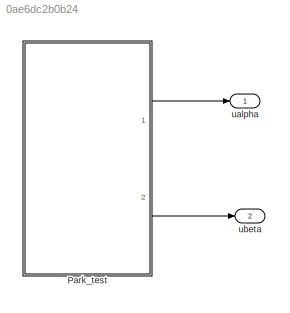
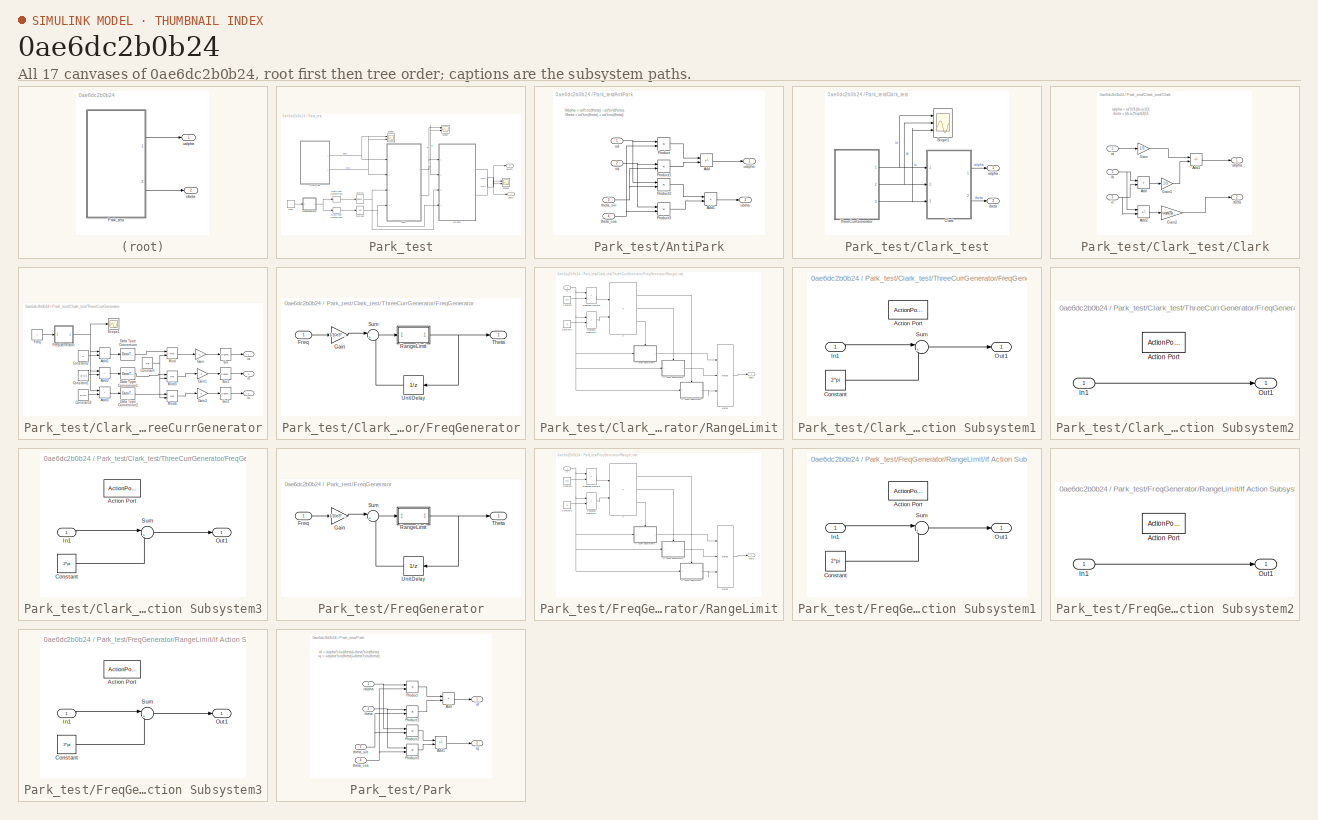
[diagram: thumbnail index - all 17 canvases of the model, root first then tree order]
MODEL slx_0ae6dc2b0b24
KIND model
CONFIG AbsTol = auto
CONFIG EnableMultiTasking = off
CONFIG FixedStep = 1e-4
CONFIG MaxStep = auto
CONFIG MinStep = auto
CONFIG RelTol = 1e-3
CONFIG SampleTimeConstraint = Unconstrained
CONFIG SolverName = FixedStepAuto
CONFIG StartTime = 0.0
CONFIG StopTime = 10.0
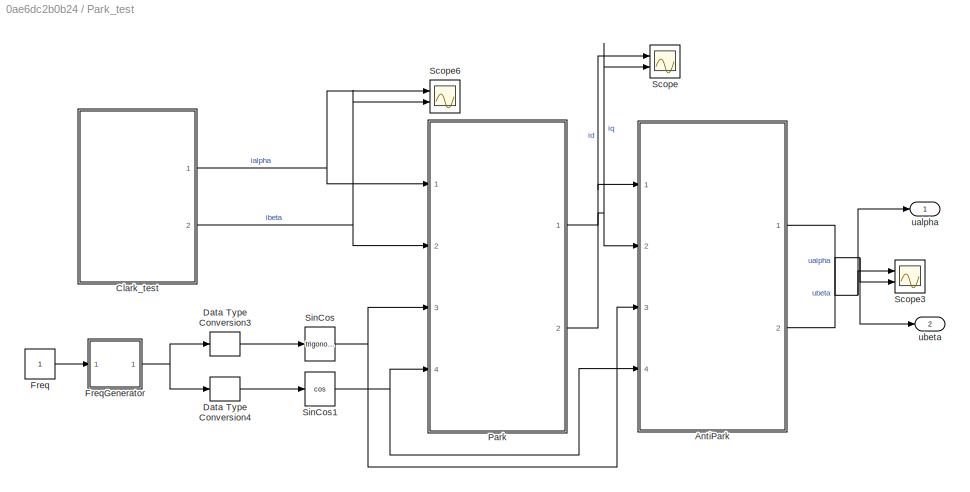
BLOCK [SubSystem] Park_test
  Ports = [0, 2]
  RTWSystemCode = Nonreusable function
  RequestExecContextInheritance = off
  TreatAsAtomicUnit = on
BLOCK [SubSystem] Park_test/AntiPark
  Ports = [4, 2]
  RequestExecContextInheritance = off
BLOCK [Sum] Park_test/AntiPark/Add
  IconShape = rectangular
  Inputs = +-
  Ports = [2, 1]
BLOCK [Sum] Park_test/AntiPark/Add1
  IconShape = rectangular
  Ports = [2, 1]
BLOCK [Product] Park_test/AntiPark/Product
  Ports = [2, 1]
BLOCK [Product] Park_test/AntiPark/Product1
  Ports = [2, 1]
BLOCK [Product] Park_test/AntiPark/Product2
  Ports = [2, 1]
BLOCK [Product] Park_test/AntiPark/Product3
  Ports = [2, 1]
BLOCK [Inport] Park_test/AntiPark/theta_cos
  Port = 4
BLOCK [Inport] Park_test/AntiPark/theta_sin
  Port = 3
BLOCK [Outport] Park_test/AntiPark/ualpha
  OutDataTypeStr = single
BLOCK [Outport] Park_test/AntiPark/ubeta
  OutDataTypeStr = single
  Port = 2
BLOCK [Inport] Park_test/AntiPark/ud
BLOCK [Inport] Park_test/AntiPark/uq
  Port = 2
BLOCK [SubSystem] Park_test/Clark_test
  Ports = [0, 2]
  RTWSystemCode = Nonreusable function
  RequestExecContextInheritance = off
  TreatAsAtomicUnit = on
BLOCK [SubSystem] Park_test/Clark_test/Clark
  Ports = [3, 2]
  RequestExecContextInheritance = off
BLOCK [Sum] Park_test/Clark_test/Clark/Add
  AccumDataTypeStr = single
  IconShape = rectangular
  OutDataTypeStr = single
  Ports = [2, 1]
BLOCK [Sum] Park_test/Clark_test/Clark/Add1
  AccumDataTypeStr = single
  IconShape = rectangular
  Inputs = +-
  OutDataTypeStr = single
  Ports = [2, 1]
BLOCK [Sum] Park_test/Clark_test/Clark/Add2
  AccumDataTypeStr = single
  IconShape = rectangular
  Inputs = +-
  OutDataTypeStr = single
  Ports = [2, 1]
BLOCK [Gain] Park_test/Clark_test/Clark/Gain
  Gain = 2/3
  ParamDataTypeStr = single
BLOCK [Gain] Park_test/Clark_test/Clark/Gain1
  Gain = 1/3
  ParamDataTypeStr = single
BLOCK [Gain] Park_test/Clark_test/Clark/Gain2
  Gain = sqrt(3)/3
  ParamDataTypeStr = single
BLOCK [Inport] Park_test/Clark_test/Clark/ia
  OutDataTypeStr = single
BLOCK [Outport] Park_test/Clark_test/Clark/ialpha
  OutDataTypeStr = single
BLOCK [Inport] Park_test/Clark_test/Clark/ib
  OutDataTypeStr = single
  Port = 2
BLOCK [Outport] Park_test/Clark_test/Clark/ibeta
  OutDataTypeStr = single
  Port = 2
BLOCK [Inport] Park_test/Clark_test/Clark/ic
  OutDataTypeStr = single
  Port = 3
BLOCK [Scope] Park_test/Clark_test/Scope1
  Floating = off
  NumInputPorts = 3
  Ports = [3]
  ScopeSpecificationString = Simulink.scopes.TimeScopeBlockCfg('CurrentConfiguration', extmgr.ConfigurationSet(extmgr.Configuration('Core','General UI',true),extmgr.Configuration('Core','Source UI',true),extmgr.Configuration('Sources','WiredSimulink',true),extmgr.Configuration('Visuals','Time Domain',true,'SerializedDisplays',{struct('MinYLimReal','-1.24999','MaxYLimReal','1.24994','YLabelReal','','MinYLimMag','0.00000','MaxY...<+1842ch>
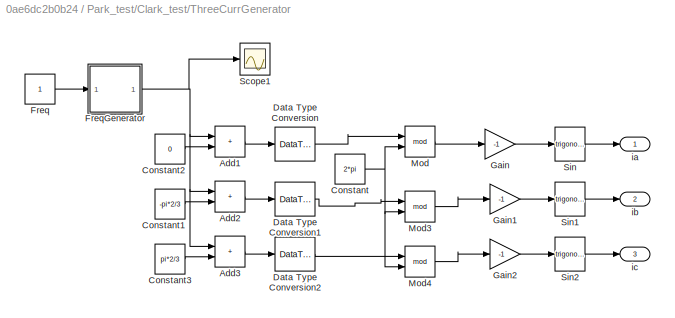
BLOCK [SubSystem] Park_test/Clark_test/ThreeCurrGenerator
  Ports = [0, 3]
  RequestExecContextInheritance = off
BLOCK [Sum] Park_test/Clark_test/ThreeCurrGenerator/Add1
  AccumDataTypeStr = single
  IconShape = rectangular
  OutDataTypeStr = single
  Ports = [2, 1]
BLOCK [Sum] Park_test/Clark_test/ThreeCurrGenerator/Add2
  AccumDataTypeStr = single
  IconShape = rectangular
  OutDataTypeStr = single
  Ports = [2, 1]
BLOCK [Sum] Park_test/Clark_test/ThreeCurrGenerator/Add3
  AccumDataTypeStr = single
  IconShape = rectangular
  OutDataTypeStr = single
  Ports = [2, 1]
BLOCK [Constant] Park_test/Clark_test/ThreeCurrGenerator/Constant
  OutDataTypeStr = single
  Value = 2*pi
BLOCK [Constant] Park_test/Clark_test/ThreeCurrGenerator/Constant1
  OutDataTypeStr = single
  Value = -pi*2/3
BLOCK [Constant] Park_test/Clark_test/ThreeCurrGenerator/Constant2
  OutDataTypeStr = single
  Value = 0
BLOCK [Constant] Park_test/Clark_test/ThreeCurrGenerator/Constant3
  OutDataTypeStr = single
  Value = pi*2/3
BLOCK [DataTypeConversion] Park_test/Clark_test/ThreeCurrGenerator/Data Type Conversion
  OutDataTypeStr = single
  RndMeth = Floor
  SaturateOnIntegerOverflow = off
BLOCK [DataTypeConversion] Park_test/Clark_test/ThreeCurrGenerator/Data Type Conversion1
  OutDataTypeStr = single
  RndMeth = Floor
  SaturateOnIntegerOverflow = off
BLOCK [DataTypeConversion] Park_test/Clark_test/ThreeCurrGenerator/Data Type Conversion2
  OutDataTypeStr = single
  RndMeth = Floor
  SaturateOnIntegerOverflow = off
BLOCK [Constant] Park_test/Clark_test/ThreeCurrGenerator/Freq
  OutDataTypeStr = single
BLOCK [SubSystem] Park_test/Clark_test/ThreeCurrGenerator/FreqGenerator
  Ports = [1, 1]
  RequestExecContextInheritance = off
BLOCK [Inport] Park_test/Clark_test/ThreeCurrGenerator/FreqGenerator/Freq
BLOCK [Gain] Park_test/Clark_test/ThreeCurrGenerator/FreqGenerator/Gain
  Gain = 1/10e3*2*pi
  OutDataTypeStr = single
BLOCK [SubSystem] Park_test/Clark_test/ThreeCurrGenerator/FreqGenerator/RangeLimit
  Ports = [1, 1]
  RequestExecContextInheritance = off
BLOCK [Constant] Park_test/Clark_test/ThreeCurrGenerator/FreqGenerator/RangeLimit/Constant
  OutDataTypeStr = single
  SampleTime = -1
  Value = 2*pi
BLOCK [Constant] Park_test/Clark_test/ThreeCurrGenerator/FreqGenerator/RangeLimit/Constant1
  OutDataTypeStr = single
  SampleTime = -1
  Value = 0
BLOCK [If] Park_test/Clark_test/ThreeCurrGenerator/FreqGenerator/RangeLimit/If
  ElseIfExpressions = u2
  IfExpression = u1
  NumInputs = 2
  Ports = [2, 3]
BLOCK [SubSystem] Park_test/Clark_test/ThreeCurrGenerator/FreqGenerator/RangeLimit/If Action Subsystem1
  Ports = [1, 1, 0, 0, 0, 0, 0, 1]
  RequestExecContextInheritance = off
  TreatAsAtomicUnit = on
BLOCK [ActionPort] Park_test/Clark_test/ThreeCurrGenerator/FreqGenerator/RangeLimit/If Action Subsystem1/Action Port
  ActionPortLabel = if(u1)
BLOCK [Constant] Park_test/Clark_test/ThreeCurrGenerator/FreqGenerator/RangeLimit/If Action Subsystem1/Constant
  OutDataTypeStr = single
  SampleTime = -1
  Value = 2*pi
BLOCK [Inport] Park_test/Clark_test/ThreeCurrGenerator/FreqGenerator/RangeLimit/If Action Subsystem1/In1
BLOCK [Outport] Park_test/Clark_test/ThreeCurrGenerator/FreqGenerator/RangeLimit/If Action Subsystem1/Out1
BLOCK [Sum] Park_test/Clark_test/ThreeCurrGenerator/FreqGenerator/RangeLimit/If Action Subsystem1/Sum
  Inputs = |+-
  Ports = [2, 1]
BLOCK [SubSystem] Park_test/Clark_test/ThreeCurrGenerator/FreqGenerator/RangeLimit/If Action Subsystem2
  Ports = [1, 1, 0, 0, 0, 0, 0, 1]
  RequestExecContextInheritance = off
  TreatAsAtomicUnit = on
BLOCK [ActionPort] Park_test/Clark_test/ThreeCurrGenerator/FreqGenerator/RangeLimit/If Action Subsystem2/Action Port
  ActionPortLabel = else
BLOCK [Inport] Park_test/Clark_test/ThreeCurrGenerator/FreqGenerator/RangeLimit/If Action Subsystem2/In1
BLOCK [Outport] Park_test/Clark_test/ThreeCurrGenerator/FreqGenerator/RangeLimit/If Action Subsystem2/Out1
BLOCK [SubSystem] Park_test/Clark_test/ThreeCurrGenerator/FreqGenerator/RangeLimit/If Action Subsystem3
  Ports = [1, 1, 0, 0, 0, 0, 0, 1]
  RequestExecContextInheritance = off
  TreatAsAtomicUnit = on
BLOCK [ActionPort] Park_test/Clark_test/ThreeCurrGenerator/FreqGenerator/RangeLimit/If Action Subsystem3/Action Port
  ActionPortLabel = elseif(u2)
BLOCK [Constant] Park_test/Clark_test/ThreeCurrGenerator/FreqGenerator/RangeLimit/If Action Subsystem3/Constant
  OutDataTypeStr = single
  SampleTime = -1
  Value = 2*pi
BLOCK [Inport] Park_test/Clark_test/ThreeCurrGenerator/FreqGenerator/RangeLimit/If Action Subsystem3/In1
BLOCK [Outport] Park_test/Clark_test/ThreeCurrGenerator/FreqGenerator/RangeLimit/If Action Subsystem3/Out1
BLOCK [Sum] Park_test/Clark_test/ThreeCurrGenerator/FreqGenerator/RangeLimit/If Action Subsystem3/Sum
  Inputs = |++
  Ports = [2, 1]
BLOCK [Inport] Park_test/Clark_test/ThreeCurrGenerator/FreqGenerator/RangeLimit/In
BLOCK [Merge] Park_test/Clark_test/ThreeCurrGenerator/FreqGenerator/RangeLimit/Merge
  Inputs = 3
  Ports = [3, 1]
BLOCK [RelationalOperator] Park_test/Clark_test/ThreeCurrGenerator/FreqGenerator/RangeLimit/Relational Operator
  InputSameDT = off
  Operator = >
  OutDataTypeStr = boolean
  Ports = [2, 1]
  RndMeth = Simplest
BLOCK [RelationalOperator] Park_test/Clark_test/ThreeCurrGenerator/FreqGenerator/RangeLimit/Relational Operator1
  InputSameDT = off
  Operator = <
  OutDataTypeStr = boolean
  Ports = [2, 1]
  RndMeth = Simplest
BLOCK [Outport] Park_test/Clark_test/ThreeCurrGenerator/FreqGenerator/RangeLimit/Theta
BLOCK [Sum] Park_test/Clark_test/ThreeCurrGenerator/FreqGenerator/Sum
  Inputs = |++
  OutDataTypeStr = Inherit: Same as first input
  Ports = [2, 1]
BLOCK [Outport] Park_test/Clark_test/ThreeCurrGenerator/FreqGenerator/Theta
BLOCK [UnitDelay] Park_test/Clark_test/ThreeCurrGenerator/FreqGenerator/Unit Delay
  HasFrameUpgradeWarning = on
  NameLocation = top
  SampleTime = -1
BLOCK [Gain] Park_test/Clark_test/ThreeCurrGenerator/Gain
  Gain = -1
BLOCK [Gain] Park_test/Clark_test/ThreeCurrGenerator/Gain1
  Gain = -1
BLOCK [Gain] Park_test/Clark_test/ThreeCurrGenerator/Gain2
  Gain = -1
BLOCK [Math] Park_test/Clark_test/ThreeCurrGenerator/Mod
  Operator = mod
  Ports = [2, 1]
BLOCK [Math] Park_test/Clark_test/ThreeCurrGenerator/Mod3
  Operator = mod
  Ports = [2, 1]
BLOCK [Math] Park_test/Clark_test/ThreeCurrGenerator/Mod4
  Operator = mod
  Ports = [2, 1]
BLOCK [Scope] Park_test/Clark_test/ThreeCurrGenerator/Scope1
  Floating = off
  NumInputPorts = 1
  Ports = [1]
  ScopeSpecificationString = Simulink.scopes.TimeScopeBlockCfg('CurrentConfiguration', extmgr.ConfigurationSet(extmgr.Configuration('Core','General UI',true),extmgr.Configuration('Core','Source UI',true),extmgr.Configuration('Sources','WiredSimulink',true,'DataLoggingVariableName','ScopeData3'),extmgr.Configuration('Visuals','Time Domain',true,'SerializedDisplays',{struct('MinYLimReal','-0.78536','MaxYLimReal','7.06826','YLab...<+1372ch>
BLOCK [Trigonometry] Park_test/Clark_test/ThreeCurrGenerator/Sin
  ApproximationMethod = Lookup
  Ports = [1, 1]
BLOCK [Trigonometry] Park_test/Clark_test/ThreeCurrGenerator/Sin1
  ApproximationMethod = Lookup
  Ports = [1, 1]
BLOCK [Trigonometry] Park_test/Clark_test/ThreeCurrGenerator/Sin2
  ApproximationMethod = Lookup
  Ports = [1, 1]
BLOCK [Outport] Park_test/Clark_test/ThreeCurrGenerator/ia
BLOCK [Outport] Park_test/Clark_test/ThreeCurrGenerator/ib
  Port = 2
BLOCK [Outport] Park_test/Clark_test/ThreeCurrGenerator/ic
  Port = 3
BLOCK [Outport] Park_test/Clark_test/ialpha
BLOCK [Outport] Park_test/Clark_test/ibeta
  Port = 2
BLOCK [DataTypeConversion] Park_test/Data Type Conversion3
  OutDataTypeStr = single
  RndMeth = Floor
  SaturateOnIntegerOverflow = off
BLOCK [DataTypeConversion] Park_test/Data Type Conversion4
  OutDataTypeStr = single
  RndMeth = Floor
  SaturateOnIntegerOverflow = off
BLOCK [Constant] Park_test/Freq
  OutDataTypeStr = single
BLOCK [SubSystem] Park_test/FreqGenerator
  Ports = [1, 1]
  RequestExecContextInheritance = off
BLOCK [Inport] Park_test/FreqGenerator/Freq
BLOCK [Gain] Park_test/FreqGenerator/Gain
  Gain = 1/10e3*2*pi
  OutDataTypeStr = single
BLOCK [SubSystem] Park_test/FreqGenerator/RangeLimit
  Ports = [1, 1]
  RequestExecContextInheritance = off
BLOCK [Constant] Park_test/FreqGenerator/RangeLimit/Constant
  OutDataTypeStr = single
  SampleTime = -1
  Value = 2*pi
BLOCK [Constant] Park_test/FreqGenerator/RangeLimit/Constant1
  OutDataTypeStr = single
  SampleTime = -1
  Value = 0
BLOCK [If] Park_test/FreqGenerator/RangeLimit/If
  ElseIfExpressions = u2
  IfExpression = u1
  NumInputs = 2
  Ports = [2, 3]
BLOCK [SubSystem] Park_test/FreqGenerator/RangeLimit/If Action Subsystem1
  Ports = [1, 1, 0, 0, 0, 0, 0, 1]
  RequestExecContextInheritance = off
  TreatAsAtomicUnit = on
BLOCK [ActionPort] Park_test/FreqGenerator/RangeLimit/If Action Subsystem1/Action Port
  ActionPortLabel = if(u1)
BLOCK [Constant] Park_test/FreqGenerator/RangeLimit/If Action Subsystem1/Constant
  OutDataTypeStr = single
  SampleTime = -1
  Value = 2*pi
BLOCK [Inport] Park_test/FreqGenerator/RangeLimit/If Action Subsystem1/In1
BLOCK [Outport] Park_test/FreqGenerator/RangeLimit/If Action Subsystem1/Out1
BLOCK [Sum] Park_test/FreqGenerator/RangeLimit/If Action Subsystem1/Sum
  Inputs = |+-
  Ports = [2, 1]
BLOCK [SubSystem] Park_test/FreqGenerator/RangeLimit/If Action Subsystem2
  Ports = [1, 1, 0, 0, 0, 0, 0, 1]
  RequestExecContextInheritance = off
  TreatAsAtomicUnit = on
BLOCK [ActionPort] Park_test/FreqGenerator/RangeLimit/If Action Subsystem2/Action Port
  ActionPortLabel = else
BLOCK [Inport] Park_test/FreqGenerator/RangeLimit/If Action Subsystem2/In1
BLOCK [Outport] Park_test/FreqGenerator/RangeLimit/If Action Subsystem2/Out1
BLOCK [SubSystem] Park_test/FreqGenerator/RangeLimit/If Action Subsystem3
  Ports = [1, 1, 0, 0, 0, 0, 0, 1]
  RequestExecContextInheritance = off
  TreatAsAtomicUnit = on
BLOCK [ActionPort] Park_test/FreqGenerator/RangeLimit/If Action Subsystem3/Action Port
  ActionPortLabel = elseif(u2)
BLOCK [Constant] Park_test/FreqGenerator/RangeLimit/If Action Subsystem3/Constant
  OutDataTypeStr = single
  SampleTime = -1
  Value = 2*pi
BLOCK [Inport] Park_test/FreqGenerator/RangeLimit/If Action Subsystem3/In1
BLOCK [Outport] Park_test/FreqGenerator/RangeLimit/If Action Subsystem3/Out1
BLOCK [Sum] Park_test/FreqGenerator/RangeLimit/If Action Subsystem3/Sum
  Inputs = |++
  Ports = [2, 1]
BLOCK [Inport] Park_test/FreqGenerator/RangeLimit/In
BLOCK [Merge] Park_test/FreqGenerator/RangeLimit/Merge
  Inputs = 3
  Ports = [3, 1]
BLOCK [RelationalOperator] Park_test/FreqGenerator/RangeLimit/Relational Operator
  InputSameDT = off
  Operator = >
  OutDataTypeStr = boolean
  Ports = [2, 1]
  RndMeth = Simplest
BLOCK [RelationalOperator] Park_test/FreqGenerator/RangeLimit/Relational Operator1
  InputSameDT = off
  Operator = <
  OutDataTypeStr = boolean
  Ports = [2, 1]
  RndMeth = Simplest
BLOCK [Outport] Park_test/FreqGenerator/RangeLimit/Theta
BLOCK [Sum] Park_test/FreqGenerator/Sum
  Inputs = |++
  OutDataTypeStr = Inherit: Same as first input
  Ports = [2, 1]
BLOCK [Outport] Park_test/FreqGenerator/Theta
BLOCK [UnitDelay] Park_test/FreqGenerator/Unit Delay
  HasFrameUpgradeWarning = on
  NameLocation = top
  SampleTime = -1
BLOCK [SubSystem] Park_test/Park
  Ports = [4, 2]
  RequestExecContextInheritance = off
BLOCK [Sum] Park_test/Park/Add
  AccumDataTypeStr = single
  IconShape = rectangular
  OutDataTypeStr = single
  Ports = [2, 1]
BLOCK [Sum] Park_test/Park/Add1
  AccumDataTypeStr = single
  IconShape = rectangular
  Inputs = -+
  OutDataTypeStr = single
  Ports = [2, 1]
BLOCK [Product] Park_test/Park/Product
  OutDataTypeStr = single
  Ports = [2, 1]
BLOCK [Product] Park_test/Park/Product1
  OutDataTypeStr = single
  Ports = [2, 1]
BLOCK [Product] Park_test/Park/Product2
  OutDataTypeStr = single
  Ports = [2, 1]
BLOCK [Product] Park_test/Park/Product3
  OutDataTypeStr = single
  Ports = [2, 1]
BLOCK [Inport] Park_test/Park/ialpha
  OutDataTypeStr = single
BLOCK [Inport] Park_test/Park/ibeta
  OutDataTypeStr = single
  Port = 2
BLOCK [Outport] Park_test/Park/id
  OutDataTypeStr = single
BLOCK [Outport] Park_test/Park/iq
  OutDataTypeStr = single
  Port = 2
BLOCK [Inport] Park_test/Park/theta_cos
  OutDataTypeStr = single
  Port = 4
BLOCK [Inport] Park_test/Park/theta_sin
  OutDataTypeStr = single
  Port = 3
BLOCK [Scope] Park_test/Scope
  Floating = off
  NumInputPorts = 2
  Ports = [2]
  ScopeSpecificationString = Simulink.scopes.TimeScopeBlockCfg('CurrentConfiguration', extmgr.ConfigurationSet(extmgr.Configuration('Core','General UI',true),extmgr.Configuration('Core','Source UI',true),extmgr.Configuration('Sources','WiredSimulink',true,'DataLoggingVariableName','ScopeData1'),extmgr.Configuration('Visuals','Time Domain',true,'SerializedDisplays',{struct('MinYLimReal','-0.125','MaxYLimReal','1.125','YLabelRe...<+1406ch>
BLOCK [Scope] Park_test/Scope3
  Floating = off
  NumInputPorts = 2
  Ports = [2]
  ScopeSpecificationString = Simulink.scopes.TimeScopeBlockCfg('CurrentConfiguration', extmgr.ConfigurationSet(extmgr.Configuration('Core','General UI',true),extmgr.Configuration('Core','Source UI',true),extmgr.Configuration('Sources','WiredSimulink',true,'DataLoggingVariableName','ScopeData3'),extmgr.Configuration('Visuals','Time Domain',true,'SerializedDisplays',{struct('MinYLimReal','-1.25','MaxYLimReal','1.25','YLabelReal...<+1383ch>
BLOCK [Scope] Park_test/Scope6
  Floating = off
  NumInputPorts = 2
  Ports = [2]
  ScopeSpecificationString = Simulink.scopes.TimeScopeBlockCfg('CurrentConfiguration', extmgr.ConfigurationSet(extmgr.Configuration('Core','General UI',true),extmgr.Configuration('Core','Source UI',true),extmgr.Configuration('Sources','WiredSimulink',true,'DataLoggingVariableName','ScopeData6'),extmgr.Configuration('Visuals','Time Domain',true,'SerializedDisplays',{struct('MinYLimReal','-1.25','MaxYLimReal','1.25','YLabelReal...<+1637ch>
BLOCK [Trigonometry] Park_test/SinCos
  ApproximationMethod = Lookup
  Ports = [1, 1]
BLOCK [Trigonometry] Park_test/SinCos1
  ApproximationMethod = Lookup
  Operator = cos
  Ports = [1, 1]
BLOCK [Outport] Park_test/ualpha
BLOCK [Outport] Park_test/ubeta
  Port = 2
BLOCK [Outport] ualpha
BLOCK [Outport] ubeta
  Port = 2
ANNOTATION Park_test/AntiPark: Valpha = ud*cos(theta) - uq*sin(theta); Vbeta = ud*sin(theta) + uq*cos(theta);
ANNOTATION Park_test/Clark_test/Clark: ialpha = ia*2/3-(ib+ic)/3; ibeta = (ib-ic)*sqrt(3)/3;
ANNOTATION Park_test/Park: id = ialpha*cos(theta)+ibeta*sin(theta); iq = -ialpha*sin(theta)+ibeta*cos(theta);
LINE Park_test/AntiPark/Add1:1 -> Park_test/AntiPark/ubeta:1
LINE Park_test/AntiPark/Add:1 -> Park_test/AntiPark/ualpha:1
LINE Park_test/AntiPark/Product1:1 -> Park_test/AntiPark/Add:2
LINE Park_test/AntiPark/Product2:1 -> Park_test/AntiPark/Add1:1
LINE Park_test/AntiPark/Product3:1 -> Park_test/AntiPark/Add1:2
LINE Park_test/AntiPark/Product:1 -> Park_test/AntiPark/Add:1
NET Park_test/AntiPark/theta_cos:1 -> Park_test/AntiPark/Product3:2, Park_test/AntiPark/Product:2
NET Park_test/AntiPark/theta_sin:1 -> Park_test/AntiPark/Product1:2, Park_test/AntiPark/Product2:2
NET Park_test/AntiPark/ud:1 -> Park_test/AntiPark/Product2:1, Park_test/AntiPark/Product:1
NET Park_test/AntiPark/uq:1 -> Park_test/AntiPark/Product1:1, Park_test/AntiPark/Product3:1
NET Park_test/AntiPark:1 -> Park_test/Scope3:1, Park_test/ualpha:1
NET Park_test/AntiPark:2 -> Park_test/Scope3:2, Park_test/ubeta:1
LINE Park_test/Clark_test/Clark/Add1:1 -> Park_test/Clark_test/Clark/ialpha:1
LINE Park_test/Clark_test/Clark/Add2:1 -> Park_test/Clark_test/Clark/Gain2:1
LINE Park_test/Clark_test/Clark/Add:1 -> Park_test/Clark_test/Clark/Gain1:1
LINE Park_test/Clark_test/Clark/Gain1:1 -> Park_test/Clark_test/Clark/Add1:2
LINE Park_test/Clark_test/Clark/Gain2:1 -> Park_test/Clark_test/Clark/ibeta:1
LINE Park_test/Clark_test/Clark/Gain:1 -> Park_test/Clark_test/Clark/Add1:1
LINE Park_test/Clark_test/Clark/ia:1 -> Park_test/Clark_test/Clark/Gain:1
NET Park_test/Clark_test/Clark/ib:1 -> Park_test/Clark_test/Clark/Add2:1, Park_test/Clark_test/Clark/Add:1
NET Park_test/Clark_test/Clark/ic:1 -> Park_test/Clark_test/Clark/Add2:2, Park_test/Clark_test/Clark/Add:2
LINE Park_test/Clark_test/Clark:1 -> Park_test/Clark_test/ialpha:1
LINE Park_test/Clark_test/Clark:2 -> Park_test/Clark_test/ibeta:1
LINE Park_test/Clark_test/ThreeCurrGenerator/Add1:1 -> Park_test/Clark_test/ThreeCurrGenerator/Data Type Conversion:1
LINE Park_test/Clark_test/ThreeCurrGenerator/Add2:1 -> Park_test/Clark_test/ThreeCurrGenerator/Data Type Conversion1:1
LINE Park_test/Clark_test/ThreeCurrGenerator/Add3:1 -> Park_test/Clark_test/ThreeCurrGenerator/Data Type Conversion2:1
LINE Park_test/Clark_test/ThreeCurrGenerator/Constant1:1 -> Park_test/Clark_test/ThreeCurrGenerator/Add2:2
LINE Park_test/Clark_test/ThreeCurrGenerator/Constant2:1 -> Park_test/Clark_test/ThreeCurrGenerator/Add1:2
LINE Park_test/Clark_test/ThreeCurrGenerator/Constant3:1 -> Park_test/Clark_test/ThreeCurrGenerator/Add3:2
NET Park_test/Clark_test/ThreeCurrGenerator/Constant:1 -> Park_test/Clark_test/ThreeCurrGenerator/Mod3:2, Park_test/Clark_test/ThreeCurrGenerator/Mod4:2, Park_test/Clark_test/ThreeCurrGenerator/Mod:2
LINE Park_test/Clark_test/ThreeCurrGenerator/Data Type Conversion1:1 -> Park_test/Clark_test/ThreeCurrGenerator/Mod3:1
LINE Park_test/Clark_test/ThreeCurrGenerator/Data Type Conversion2:1 -> Park_test/Clark_test/ThreeCurrGenerator/Mod4:1
LINE Park_test/Clark_test/ThreeCurrGenerator/Data Type Conversion:1 -> Park_test/Clark_test/ThreeCurrGenerator/Mod:1
LINE Park_test/Clark_test/ThreeCurrGenerator/Freq:1 -> Park_test/Clark_test/ThreeCurrGenerator/FreqGenerator:1
LINE Park_test/Clark_test/ThreeCurrGenerator/FreqGenerator/Freq:1 -> Park_test/Clark_test/ThreeCurrGenerator/FreqGenerator/Gain:1
LINE Park_test/Clark_test/ThreeCurrGenerator/FreqGenerator/Gain:1 -> Park_test/Clark_test/ThreeCurrGenerator/FreqGenerator/Sum:1
LINE Park_test/Clark_test/ThreeCurrGenerator/FreqGenerator/RangeLimit/Constant1:1 -> Park_test/Clark_test/ThreeCurrGenerator/FreqGenerator/RangeLimit/Relational Operator1:2
LINE Park_test/Clark_test/ThreeCurrGenerator/FreqGenerator/RangeLimit/Constant:1 -> Park_test/Clark_test/ThreeCurrGenerator/FreqGenerator/RangeLimit/Relational Operator:2
LINE Park_test/Clark_test/ThreeCurrGenerator/FreqGenerator/RangeLimit/If Action Subsystem1/Constant:1 -> Park_test/Clark_test/ThreeCurrGenerator/FreqGenerator/RangeLimit/If Action Subsystem1/Sum:2
LINE Park_test/Clark_test/ThreeCurrGenerator/FreqGenerator/RangeLimit/If Action Subsystem1/In1:1 -> Park_test/Clark_test/ThreeCurrGenerator/FreqGenerator/RangeLimit/If Action Subsystem1/Sum:1
LINE Park_test/Clark_test/ThreeCurrGenerator/FreqGenerator/RangeLimit/If Action Subsystem1/Sum:1 -> Park_test/Clark_test/ThreeCurrGenerator/FreqGenerator/RangeLimit/If Action Subsystem1/Out1:1
LINE Park_test/Clark_test/ThreeCurrGenerator/FreqGenerator/RangeLimit/If Action Subsystem1:1 -> Park_test/Clark_test/ThreeCurrGenerator/FreqGenerator/RangeLimit/Merge:3
LINE Park_test/Clark_test/ThreeCurrGenerator/FreqGenerator/RangeLimit/If Action Subsystem2/In1:1 -> Park_test/Clark_test/ThreeCurrGenerator/FreqGenerator/RangeLimit/If Action Subsystem2/Out1:1
LINE Park_test/Clark_test/ThreeCurrGenerator/FreqGenerator/RangeLimit/If Action Subsystem2:1 -> Park_test/Clark_test/ThreeCurrGenerator/FreqGenerator/RangeLimit/Merge:1
LINE Park_test/Clark_test/ThreeCurrGenerator/FreqGenerator/RangeLimit/If Action Subsystem3/Constant:1 -> Park_test/Clark_test/ThreeCurrGenerator/FreqGenerator/RangeLimit/If Action Subsystem3/Sum:2
LINE Park_test/Clark_test/ThreeCurrGenerator/FreqGenerator/RangeLimit/If Action Subsystem3/In1:1 -> Park_test/Clark_test/ThreeCurrGenerator/FreqGenerator/RangeLimit/If Action Subsystem3/Sum:1
LINE Park_test/Clark_test/ThreeCurrGenerator/FreqGenerator/RangeLimit/If Action Subsystem3/Sum:1 -> Park_test/Clark_test/ThreeCurrGenerator/FreqGenerator/RangeLimit/If Action Subsystem3/Out1:1
LINE Park_test/Clark_test/ThreeCurrGenerator/FreqGenerator/RangeLimit/If Action Subsystem3:1 -> Park_test/Clark_test/ThreeCurrGenerator/FreqGenerator/RangeLimit/Merge:2
LINE Park_test/Clark_test/ThreeCurrGenerator/FreqGenerator/RangeLimit/If:1 -> Park_test/Clark_test/ThreeCurrGenerator/FreqGenerator/RangeLimit/If Action Subsystem1:ifaction
LINE Park_test/Clark_test/ThreeCurrGenerator/FreqGenerator/RangeLimit/If:2 -> Park_test/Clark_test/ThreeCurrGenerator/FreqGenerator/RangeLimit/If Action Subsystem3:ifaction
LINE Park_test/Clark_test/ThreeCurrGenerator/FreqGenerator/RangeLimit/If:3 -> Park_test/Clark_test/ThreeCurrGenerator/FreqGenerator/RangeLimit/If Action Subsystem2:ifaction
NET Park_test/Clark_test/ThreeCurrGenerator/FreqGenerator/RangeLimit/In:1 -> Park_test/Clark_test/ThreeCurrGenerator/FreqGenerator/RangeLimit/If Action Subsystem1:1, Park_test/Clark_test/ThreeCurrGenerator/FreqGenerator/RangeLimit/If Action Subsystem2:1, Park_test/Clark_test/ThreeCurrGenerator/FreqGenerator/RangeLimit/If Action Subsystem3:1, Park_test/Clark_test/ThreeCurrGenerator/FreqGenerator/RangeLimit/Relational Operator1:1, Park_test/Clark_test/ThreeCurrGenerator/FreqGenerator/RangeLimit/Relational Operator:1
LINE Park_test/Clark_test/ThreeCurrGenerator/FreqGenerator/RangeLimit/Merge:1 -> Park_test/Clark_test/ThreeCurrGenerator/FreqGenerator/RangeLimit/Theta:1
LINE Park_test/Clark_test/ThreeCurrGenerator/FreqGenerator/RangeLimit/Relational Operator1:1 -> Park_test/Clark_test/ThreeCurrGenerator/FreqGenerator/RangeLimit/If:2
LINE Park_test/Clark_test/ThreeCurrGenerator/FreqGenerator/RangeLimit/Relational Operator:1 -> Park_test/Clark_test/ThreeCurrGenerator/FreqGenerator/RangeLimit/If:1
NET Park_test/Clark_test/ThreeCurrGenerator/FreqGenerator/RangeLimit:1 -> Park_test/Clark_test/ThreeCurrGenerator/FreqGenerator/Theta:1, Park_test/Clark_test/ThreeCurrGenerator/FreqGenerator/Unit Delay:1
LINE Park_test/Clark_test/ThreeCurrGenerator/FreqGenerator/Sum:1 -> Park_test/Clark_test/ThreeCurrGenerator/FreqGenerator/RangeLimit:1
LINE Park_test/Clark_test/ThreeCurrGenerator/FreqGenerator/Unit Delay:1 -> Park_test/Clark_test/ThreeCurrGenerator/FreqGenerator/Sum:2
NET Park_test/Clark_test/ThreeCurrGenerator/FreqGenerator:1 -> Park_test/Clark_test/ThreeCurrGenerator/Add1:1, Park_test/Clark_test/ThreeCurrGenerator/Add2:1, Park_test/Clark_test/ThreeCurrGenerator/Add3:1, Park_test/Clark_test/ThreeCurrGenerator/Scope1:1
LINE Park_test/Clark_test/ThreeCurrGenerator/Gain1:1 -> Park_test/Clark_test/ThreeCurrGenerator/Sin1:1
LINE Park_test/Clark_test/ThreeCurrGenerator/Gain2:1 -> Park_test/Clark_test/ThreeCurrGenerator/Sin2:1
LINE Park_test/Clark_test/ThreeCurrGenerator/Gain:1 -> Park_test/Clark_test/ThreeCurrGenerator/Sin:1
LINE Park_test/Clark_test/ThreeCurrGenerator/Mod3:1 -> Park_test/Clark_test/ThreeCurrGenerator/Gain1:1
LINE Park_test/Clark_test/ThreeCurrGenerator/Mod4:1 -> Park_test/Clark_test/ThreeCurrGenerator/Gain2:1
LINE Park_test/Clark_test/ThreeCurrGenerator/Mod:1 -> Park_test/Clark_test/ThreeCurrGenerator/Gain:1
LINE Park_test/Clark_test/ThreeCurrGenerator/Sin1:1 -> Park_test/Clark_test/ThreeCurrGenerator/ib:1
LINE Park_test/Clark_test/ThreeCurrGenerator/Sin2:1 -> Park_test/Clark_test/ThreeCurrGenerator/ic:1
LINE Park_test/Clark_test/ThreeCurrGenerator/Sin:1 -> Park_test/Clark_test/ThreeCurrGenerator/ia:1
NET Park_test/Clark_test/ThreeCurrGenerator:1 -> Park_test/Clark_test/Clark:1, Park_test/Clark_test/Scope1:1
NET Park_test/Clark_test/ThreeCurrGenerator:2 -> Park_test/Clark_test/Clark:2, Park_test/Clark_test/Scope1:2
NET Park_test/Clark_test/ThreeCurrGenerator:3 -> Park_test/Clark_test/Clark:3, Park_test/Clark_test/Scope1:3
NET Park_test/Clark_test:1 -> Park_test/Park:1, Park_test/Scope6:1
NET Park_test/Clark_test:2 -> Park_test/Park:2, Park_test/Scope6:2
LINE Park_test/Data Type Conversion3:1 -> Park_test/SinCos:1
LINE Park_test/Data Type Conversion4:1 -> Park_test/SinCos1:1
LINE Park_test/Freq:1 -> Park_test/FreqGenerator:1
LINE Park_test/FreqGenerator/Freq:1 -> Park_test/FreqGenerator/Gain:1
LINE Park_test/FreqGenerator/Gain:1 -> Park_test/FreqGenerator/Sum:1
LINE Park_test/FreqGenerator/RangeLimit/Constant1:1 -> Park_test/FreqGenerator/RangeLimit/Relational Operator1:2
LINE Park_test/FreqGenerator/RangeLimit/Constant:1 -> Park_test/FreqGenerator/RangeLimit/Relational Operator:2
LINE Park_test/FreqGenerator/RangeLimit/If Action Subsystem1/Constant:1 -> Park_test/FreqGenerator/RangeLimit/If Action Subsystem1/Sum:2
LINE Park_test/FreqGenerator/RangeLimit/If Action Subsystem1/In1:1 -> Park_test/FreqGenerator/RangeLimit/If Action Subsystem1/Sum:1
LINE Park_test/FreqGenerator/RangeLimit/If Action Subsystem1/Sum:1 -> Park_test/FreqGenerator/RangeLimit/If Action Subsystem1/Out1:1
LINE Park_test/FreqGenerator/RangeLimit/If Action Subsystem1:1 -> Park_test/FreqGenerator/RangeLimit/Merge:3
LINE Park_test/FreqGenerator/RangeLimit/If Action Subsystem2/In1:1 -> Park_test/FreqGenerator/RangeLimit/If Action Subsystem2/Out1:1
LINE Park_test/FreqGenerator/RangeLimit/If Action Subsystem2:1 -> Park_test/FreqGenerator/RangeLimit/Merge:1
LINE Park_test/FreqGenerator/RangeLimit/If Action Subsystem3/Constant:1 -> Park_test/FreqGenerator/RangeLimit/If Action Subsystem3/Sum:2
LINE Park_test/FreqGenerator/RangeLimit/If Action Subsystem3/In1:1 -> Park_test/FreqGenerator/RangeLimit/If Action Subsystem3/Sum:1
LINE Park_test/FreqGenerator/RangeLimit/If Action Subsystem3/Sum:1 -> Park_test/FreqGenerator/RangeLimit/If Action Subsystem3/Out1:1
LINE Park_test/FreqGenerator/RangeLimit/If Action Subsystem3:1 -> Park_test/FreqGenerator/RangeLimit/Merge:2
LINE Park_test/FreqGenerator/RangeLimit/If:1 -> Park_test/FreqGenerator/RangeLimit/If Action Subsystem1:ifaction
LINE Park_test/FreqGenerator/RangeLimit/If:2 -> Park_test/FreqGenerator/RangeLimit/If Action Subsystem3:ifaction
LINE Park_test/FreqGenerator/RangeLimit/If:3 -> Park_test/FreqGenerator/RangeLimit/If Action Subsystem2:ifaction
NET Park_test/FreqGenerator/RangeLimit/In:1 -> Park_test/FreqGenerator/RangeLimit/If Action Subsystem1:1, Park_test/FreqGenerator/RangeLimit/If Action Subsystem2:1, Park_test/FreqGenerator/RangeLimit/If Action Subsystem3:1, Park_test/FreqGenerator/RangeLimit/Relational Operator1:1, Park_test/FreqGenerator/RangeLimit/Relational Operator:1
LINE Park_test/FreqGenerator/RangeLimit/Merge:1 -> Park_test/FreqGenerator/RangeLimit/Theta:1
LINE Park_test/FreqGenerator/RangeLimit/Relational Operator1:1 -> Park_test/FreqGenerator/RangeLimit/If:2
LINE Park_test/FreqGenerator/RangeLimit/Relational Operator:1 -> Park_test/FreqGenerator/RangeLimit/If:1
NET Park_test/FreqGenerator/RangeLimit:1 -> Park_test/FreqGenerator/Theta:1, Park_test/FreqGenerator/Unit Delay:1
LINE Park_test/FreqGenerator/Sum:1 -> Park_test/FreqGenerator/RangeLimit:1
LINE Park_test/FreqGenerator/Unit Delay:1 -> Park_test/FreqGenerator/Sum:2
NET Park_test/FreqGenerator:1 -> Park_test/Data Type Conversion3:1, Park_test/Data Type Conversion4:1
LINE Park_test/Park/Add1:1 -> Park_test/Park/iq:1
LINE Park_test/Park/Add:1 -> Park_test/Park/id:1
LINE Park_test/Park/Product1:1 -> Park_test/Park/Add:2
LINE Park_test/Park/Product2:1 -> Park_test/Park/Add1:1
LINE Park_test/Park/Product3:1 -> Park_test/Park/Add1:2
LINE Park_test/Park/Product:1 -> Park_test/Park/Add:1
NET Park_test/Park/ialpha:1 -> Park_test/Park/Product2:1, Park_test/Park/Product:1
NET Park_test/Park/ibeta:1 -> Park_test/Park/Product1:1, Park_test/Park/Product3:1
NET Park_test/Park/theta_cos:1 -> Park_test/Park/Product3:2, Park_test/Park/Product:2
NET Park_test/Park/theta_sin:1 -> Park_test/Park/Product1:2, Park_test/Park/Product2:2
NET Park_test/Park:1 -> Park_test/AntiPark:1, Park_test/Scope:1
NET Park_test/Park:2 -> Park_test/AntiPark:2, Park_test/Scope:2
NET Park_test/SinCos1:1 -> Park_test/AntiPark:4, Park_test/Park:4
NET Park_test/SinCos:1 -> Park_test/AntiPark:3, Park_test/Park:3
LINE Park_test:1 -> ualpha:1
LINE Park_test:2 -> ubeta:1
note: NET lines group one-source signal fan-out (src -> all destinations, sorted); 1:1 wires keep LINE
